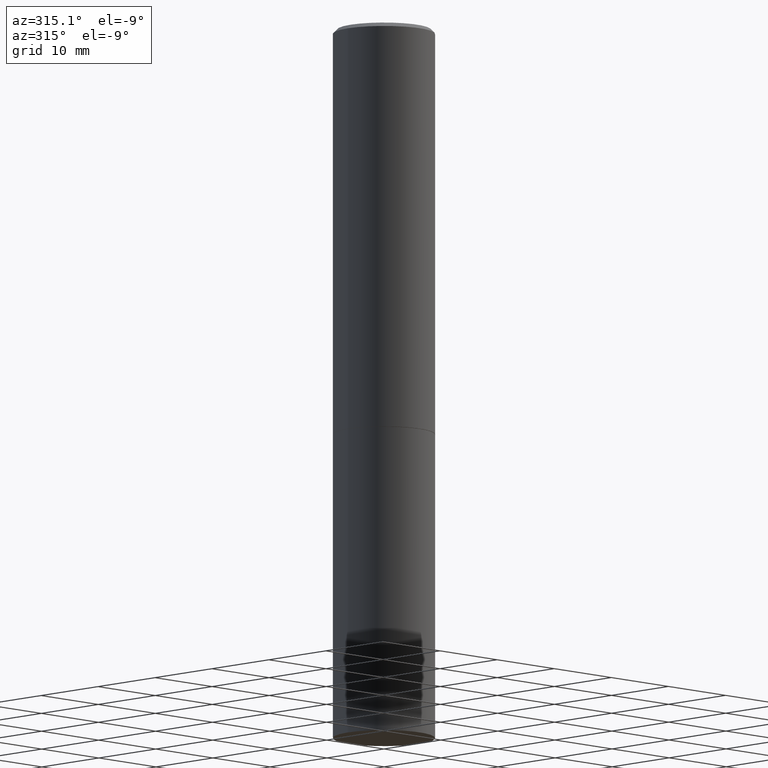
[diagram: clean part render]
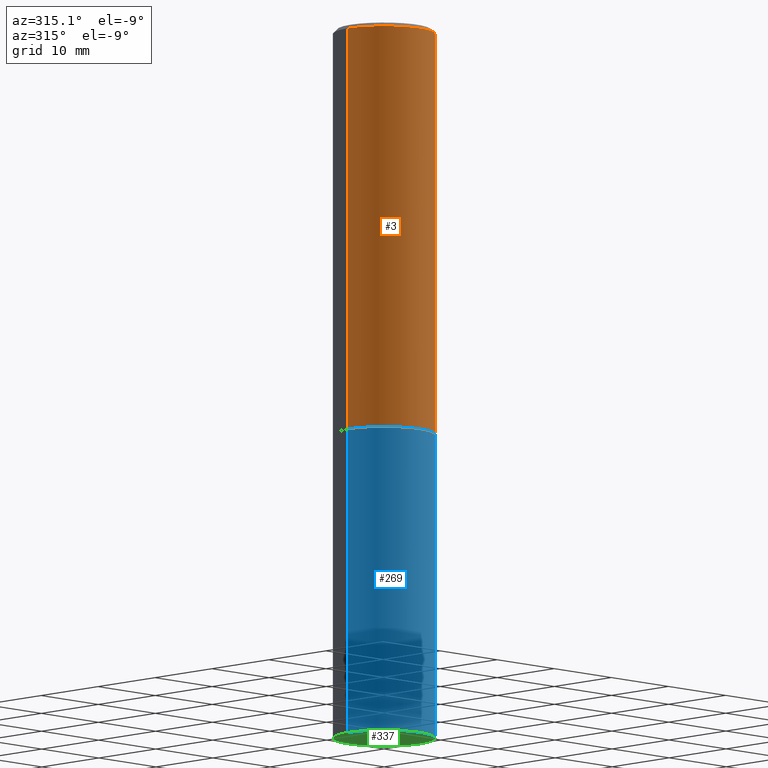
[diagram: same view with three faces highlighted in distinct colors, each labeled with its STEP entity id]
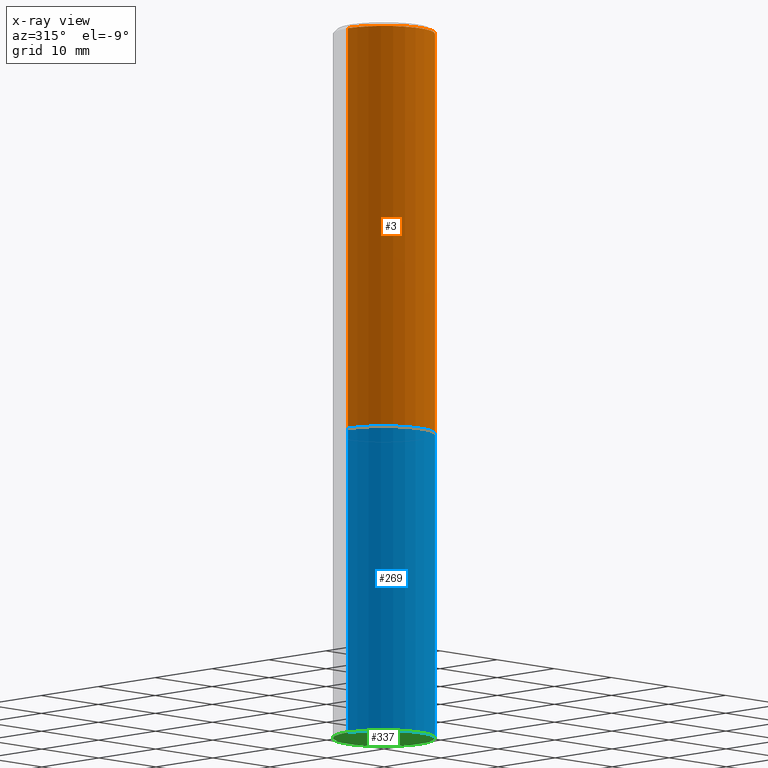
[diagram: x-ray of the same camera — body ghosted, the three highlighted faces saturated]
A machine part, auxiliary view with three faces highlighted in distinct colors.
The next image is the same camera in x-ray (body ghosted, the three faces saturated) — at least one of them is partly hidden behind the body in this view.
Their STEP definitions:

[orange] entity #3 — the highlighted cylindrical surface (partial cylindrical patch) has radius 6.35 mm, axis along (-0, 0, 1).
#2 = LINE ( 'NONE', #138, #258 ) ;
#3 = ADVANCED_FACE ( 'NONE', ( #360 ), #324, .T. ) ;
#8 = CARTESIAN_POINT ( 'NONE',  ( 0.2499999999999998057, -1.784954126219744611E-15, -0.02000000000000005940 ) ) ;
#9 = DIRECTION ( 'NONE',  ( -2.445468806185136877E-29, 3.491481338843145188E-15, 1.000000000000000000 ) ) ;
#13 = VECTOR ( 'NONE', #9, 39.37007874015748143 ) ;
#27 = DIRECTION ( 'NONE',  ( 1.000000000000000000, -6.982962677686266711E-15, 0.000000000000000000 ) ) ;
#33 = CARTESIAN_POINT ( 'NONE',  ( -0.2499999999999998057, 1.675911042644702196E-15, -0.02000000000000005940 ) ) ;
#36 = CARTESIAN_POINT ( 'NONE',  ( 0.2499999999999998890, -1.745740669421565889E-15, 1.219044193948983388E-29 ) ) ;
#58 = DIRECTION ( 'NONE',  ( -2.445468806185136597E-29, 3.491481338843145583E-15, 1.000000000000000000 ) ) ;
#72 = VERTEX_POINT ( 'NONE', #33 ) ;
#80 = EDGE_CURVE ( 'NONE', #72, #193, #265, .T. ) ;
#86 = CIRCLE ( 'NONE', #351, 0.2500000000000000000 ) ;
#92 = DIRECTION ( 'NONE',  ( -2.445468806185136597E-29, 3.491481338843145583E-15, 1.000000000000000000 ) ) ;
#102 = VERTEX_POINT ( 'NONE', #206 ) ;
#103 = EDGE_CURVE ( 'NONE', #325, #102, #86, .T. ) ;
#104 = ORIENTED_EDGE ( 'NONE', *, *, #317, .T. ) ;
#108 = EDGE_CURVE ( 'NONE', #325, #72, #2, .T. ) ;
#138 = CARTESIAN_POINT ( 'NONE',  ( -0.2499999999999998890, 1.776356839400249676E-15, -1.229733772563726025E-29 ) ) ;
#192 = AXIS2_PLACEMENT_3D ( 'NONE', #338, #58, #298 ) ;
#193 = VERTEX_POINT ( 'NONE', #8 ) ;
#194 = ORIENTED_EDGE ( 'NONE', *, *, #103, .T. ) ;
#206 = CARTESIAN_POINT ( 'NONE',  ( 0.2500000000000000000, -8.725211865769012469E-15, -1.998999999999999666 ) ) ;
#214 = EDGE_LOOP ( 'NONE', ( #336, #194, #104, #238 ) ) ;
#237 = CARTESIAN_POINT ( 'NONE',  ( -0.2500000000000000000, -1.748293572161903489E-15, -1.998999999999999666 ) ) ;
#238 = ORIENTED_EDGE ( 'NONE', *, *, #80, .F. ) ;
#247 = DIRECTION ( 'NONE',  ( -2.445468806185136597E-29, 3.491481338843145583E-15, 1.000000000000000000 ) ) ;
#251 = CARTESIAN_POINT ( 'NONE',  ( 4.888492143564087030E-29, -6.979471196347446580E-15, -1.998999999999999666 ) ) ;
#258 = VECTOR ( 'NONE', #307, 39.37007874015748143 ) ;
#259 = LINE ( 'NONE', #36, #13 ) ;
#265 = CIRCLE ( 'NONE', #365, 0.2499999999999998057 ) ;
#284 = CARTESIAN_POINT ( 'NONE',  ( 4.890937612370288047E-31, -6.982962677686311331E-17, -0.02000000000000005940 ) ) ;
#298 = DIRECTION ( 'NONE',  ( 1.000000000000000000, -6.982962677686266711E-15, 4.876176775795935793E-29 ) ) ;
#307 = DIRECTION ( 'NONE',  ( -2.445468806185136877E-29, 3.491481338843145188E-15, 1.000000000000000000 ) ) ;
#317 = EDGE_CURVE ( 'NONE', #102, #193, #259, .T. ) ;
#324 = CYLINDRICAL_SURFACE ( 'NONE', #192, 0.2499999999999998890 ) ;
#325 = VERTEX_POINT ( 'NONE', #237 ) ;
#336 = ORIENTED_EDGE ( 'NONE', *, *, #108, .F. ) ;
#338 = CARTESIAN_POINT ( 'NONE',  ( 0.000000000000000000, 0.000000000000000000, 0.000000000000000000 ) ) ;
#345 = DIRECTION ( 'NONE',  ( 1.000000000000000000, -6.982962677686266711E-15, 0.000000000000000000 ) ) ;
#351 = AXIS2_PLACEMENT_3D ( 'NONE', #251, #247, #27 ) ;
#360 = FACE_OUTER_BOUND ( 'NONE', #214, .T. ) ;
#365 = AXIS2_PLACEMENT_3D ( 'NONE', #284, #92, #345 ) ;

[blue] entity #269 — the highlighted cylindrical surface (partial cylindrical patch) has radius 6.35 mm, axis along (-0, 0, 1).
#16 = EDGE_CURVE ( 'NONE', #25, #164, #83, .T. ) ;
#25 = VERTEX_POINT ( 'NONE', #146 ) ;
#32 = CARTESIAN_POINT ( 'NONE',  ( 0.2500000000000000000, -1.745740669421566678E-15, 1.219044193948983948E-29 ) ) ;
#44 = VERTEX_POINT ( 'NONE', #200 ) ;
#50 = ORIENTED_EDGE ( 'NONE', *, *, #224, .F. ) ;
#59 = AXIS2_PLACEMENT_3D ( 'NONE', #285, #165, #73 ) ;
#63 = DIRECTION ( 'NONE',  ( -2.445468806185136597E-29, 3.491481338843145583E-15, 1.000000000000000000 ) ) ;
#64 = VECTOR ( 'NONE', #311, 39.37007874015748143 ) ;
#73 = DIRECTION ( 'NONE',  ( 1.000000000000000000, -6.982962677686266711E-15, 4.876176775795935793E-29 ) ) ;
#78 = ORIENTED_EDGE ( 'NONE', *, *, #166, .T. ) ;
#83 = LINE ( 'NONE', #121, #167 ) ;
#94 = DIRECTION ( 'NONE',  ( -2.445468806185136877E-29, 3.491481338843145188E-15, 1.000000000000000000 ) ) ;
#100 = EDGE_LOOP ( 'NONE', ( #293, #275, #78, #50 ) ) ;
#115 = FACE_OUTER_BOUND ( 'NONE', #100, .T. ) ;
#118 = CARTESIAN_POINT ( 'NONE',  ( 8.559140821647976968E-29, -1.222018468595100934E-14, -3.500000000000000000 ) ) ;
#119 = LINE ( 'NONE', #32, #64 ) ;
#121 = CARTESIAN_POINT ( 'NONE',  ( -0.2500000000000000000, 1.776356839400250465E-15, -1.229733772563726445E-29 ) ) ;
#123 = DIRECTION ( 'NONE',  ( 1.000000000000000000, -6.982962677686266711E-15, 0.000000000000000000 ) ) ;
#125 = CIRCLE ( 'NONE', #147, 0.2500000000000000000 ) ;
#145 = CARTESIAN_POINT ( 'NONE',  ( 4.890937612370272633E-29, -6.982962677686290376E-15, -1.999999999999999778 ) ) ;
#146 = CARTESIAN_POINT ( 'NONE',  ( -0.2500000000000000000, -7.825216842418397817E-15, -3.500000000000000000 ) ) ;
#147 = AXIS2_PLACEMENT_3D ( 'NONE', #145, #257, #123 ) ;
#157 = CIRCLE ( 'NONE', #323, 0.2500000000000000000 ) ;
#164 = VERTEX_POINT ( 'NONE', #253 ) ;
#165 = DIRECTION ( 'NONE',  ( -2.445468806185136597E-29, 3.491481338843145583E-15, 1.000000000000000000 ) ) ;
#166 = EDGE_CURVE ( 'NONE', #297, #44, #119, .T. ) ;
#167 = VECTOR ( 'NONE', #94, 39.37007874015748143 ) ;
#173 = EDGE_CURVE ( 'NONE', #25, #297, #157, .T. ) ;
#200 = CARTESIAN_POINT ( 'NONE',  ( 0.2500000000000000000, -8.728703347107857054E-15, -1.999999999999999778 ) ) ;
#224 = EDGE_CURVE ( 'NONE', #164, #44, #125, .T. ) ;
#228 = DIRECTION ( 'NONE',  ( 1.000000000000000000, -6.982962677686270655E-15, 0.000000000000000000 ) ) ;
#253 = CARTESIAN_POINT ( 'NONE',  ( -0.2500000000000000000, -7.825216842418397817E-15, -1.999999999999999778 ) ) ;
#257 = DIRECTION ( 'NONE',  ( -2.445468806185136597E-29, 3.491481338843145583E-15, 1.000000000000000000 ) ) ;
#269 = ADVANCED_FACE ( 'NONE', ( #115 ), #339, .T. ) ;
#275 = ORIENTED_EDGE ( 'NONE', *, *, #173, .T. ) ;
#285 = CARTESIAN_POINT ( 'NONE',  ( 0.000000000000000000, 0.000000000000000000, 0.000000000000000000 ) ) ;
#293 = ORIENTED_EDGE ( 'NONE', *, *, #16, .F. ) ;
#297 = VERTEX_POINT ( 'NONE', #355 ) ;
#311 = DIRECTION ( 'NONE',  ( -2.445468806185136877E-29, 3.491481338843145188E-15, 1.000000000000000000 ) ) ;
#323 = AXIS2_PLACEMENT_3D ( 'NONE', #118, #63, #228 ) ;
#339 = CYLINDRICAL_SURFACE ( 'NONE', #59, 0.2500000000000000000 ) ;
#355 = CARTESIAN_POINT ( 'NONE',  ( 0.2500000000000000000, -1.396592535537257602E-14, -3.500000000000000000 ) ) ;

[green] entity #337 — the highlighted planar face has unit normal (0, -0, -1).
#25 = VERTEX_POINT ( 'NONE', #146 ) ;
#29 = AXIS2_PLACEMENT_3D ( 'NONE', #315, #262, #129 ) ;
#35 = AXIS2_PLACEMENT_3D ( 'NONE', #51, #170, #132 ) ;
#40 = PLANE ( 'NONE',  #29 ) ;
#46 = ORIENTED_EDGE ( 'NONE', *, *, #292, .F. ) ;
#51 = CARTESIAN_POINT ( 'NONE',  ( 8.559140821647976968E-29, -1.222018468595100934E-14, -3.500000000000000000 ) ) ;
#53 = CIRCLE ( 'NONE', #35, 0.2500000000000000000 ) ;
#63 = DIRECTION ( 'NONE',  ( -2.445468806185136597E-29, 3.491481338843145583E-15, 1.000000000000000000 ) ) ;
#69 = FACE_OUTER_BOUND ( 'NONE', #76, .T. ) ;
#76 = EDGE_LOOP ( 'NONE', ( #46, #274 ) ) ;
#118 = CARTESIAN_POINT ( 'NONE',  ( 8.559140821647976968E-29, -1.222018468595100934E-14, -3.500000000000000000 ) ) ;
#129 = DIRECTION ( 'NONE',  ( -1.000000000000000000, 6.982962677686265922E-15, -4.876176775795935793E-29 ) ) ;
#132 = DIRECTION ( 'NONE',  ( 1.000000000000000000, -6.982962677686270655E-15, 0.000000000000000000 ) ) ;
#146 = CARTESIAN_POINT ( 'NONE',  ( -0.2500000000000000000, -7.825216842418397817E-15, -3.500000000000000000 ) ) ;
#157 = CIRCLE ( 'NONE', #323, 0.2500000000000000000 ) ;
#170 = DIRECTION ( 'NONE',  ( -2.445468806185136597E-29, 3.491481338843145583E-15, 1.000000000000000000 ) ) ;
#173 = EDGE_CURVE ( 'NONE', #25, #297, #157, .T. ) ;
#228 = DIRECTION ( 'NONE',  ( 1.000000000000000000, -6.982962677686270655E-15, 0.000000000000000000 ) ) ;
#262 = DIRECTION ( 'NONE',  ( 2.438088387897960049E-29, -3.491481338843145188E-15, -1.000000000000000000 ) ) ;
#274 = ORIENTED_EDGE ( 'NONE', *, *, #173, .F. ) ;
#292 = EDGE_CURVE ( 'NONE', #297, #25, #53, .T. ) ;
#297 = VERTEX_POINT ( 'NONE', #355 ) ;
#315 = CARTESIAN_POINT ( 'NONE',  ( 1.745740669421652072E-15, 0.2499999999999877598, -3.500000000000000888 ) ) ;
#323 = AXIS2_PLACEMENT_3D ( 'NONE', #118, #63, #228 ) ;
#337 = ADVANCED_FACE ( 'NONE', ( #69 ), #40, .T. ) ;
#355 = CARTESIAN_POINT ( 'NONE',  ( 0.2500000000000000000, -1.396592535537257602E-14, -3.500000000000000000 ) ) ;